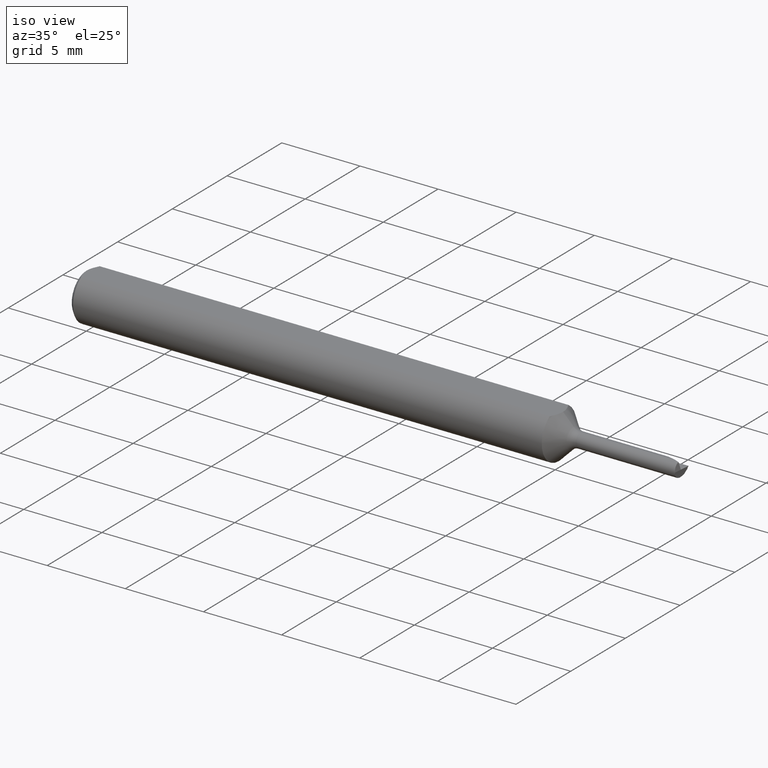
[diagram: clean part render]
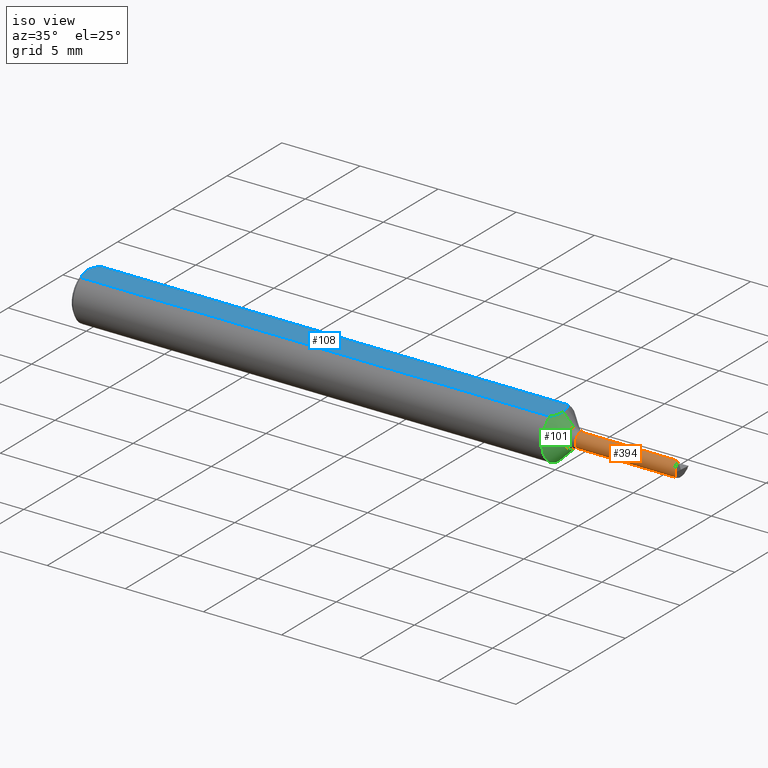
[diagram: same view with three faces highlighted in distinct colors, each labeled with its STEP entity id]
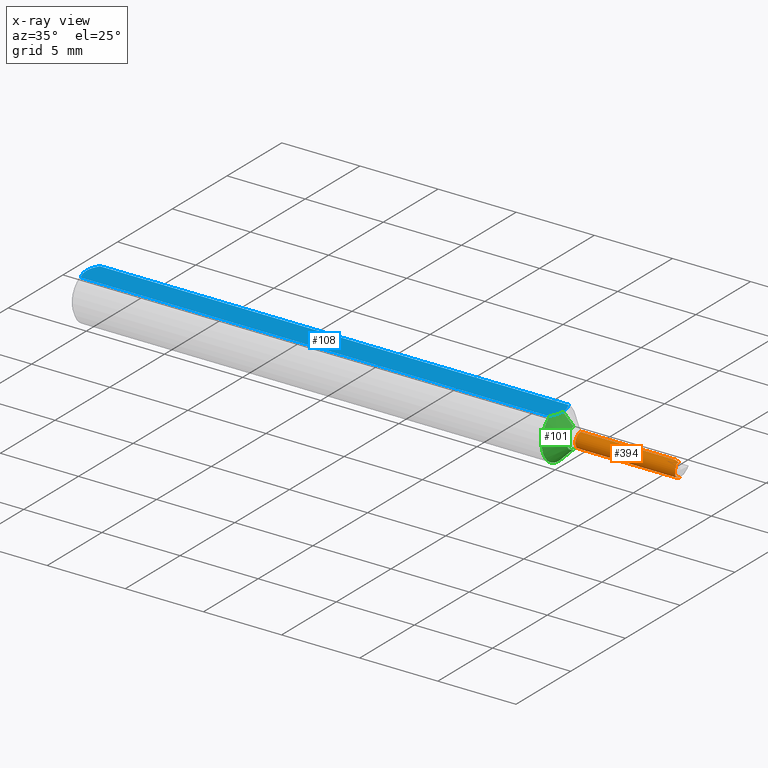
[diagram: x-ray of the same camera — body ghosted, the three highlighted faces saturated]
A machine part, iso view with three faces highlighted in distinct colors.
The next image is the same camera in x-ray (body ghosted, the three faces saturated) — at least one of them is partly hidden behind the body in this view.
Their STEP definitions:

[orange] entity #394 — the highlighted cylindrical surface (edge-blend (fillet) strip) has radius 0.4699 mm, axis along (-1, -0, -0).
#11 = VERTEX_POINT ( 'NONE', #97 ) ;
#12 = LINE ( 'NONE', #172, #50 ) ;
#27 = EDGE_CURVE ( 'NONE', #630, #31, #138, .T. ) ;
#31 = VERTEX_POINT ( 'NONE', #248 ) ;
#50 = VECTOR ( 'NONE', #102, 39.37007874015748143 ) ;
#78 = CARTESIAN_POINT ( 'NONE',  ( 1.496237987468385322, -0.01849999999999997133, 2.346737396167181165E-16 ) ) ;
#97 = CARTESIAN_POINT ( 'NONE',  ( 1.494952902551172302, -0.004097954674002863944, 0.01804042038007478907 ) ) ;
#102 = DIRECTION ( 'NONE',  ( -1.000000000000000000, -0.000000000000000000, -0.000000000000000000 ) ) ;
#105 = DIRECTION ( 'NONE',  ( -1.000000000000000000, -0.000000000000000000, -0.000000000000000000 ) ) ;
#113 = VERTEX_POINT ( 'NONE', #540 ) ;
#118 = EDGE_CURVE ( 'NONE', #630, #113, #12, .T. ) ;
#138 =( BOUNDED_CURVE ( )  B_SPLINE_CURVE ( 3, ( #197, #253, #393, #200 ),
 .UNSPECIFIED., .F., .T. ) 
 B_SPLINE_CURVE_WITH_KNOTS ( ( 4, 4 ),
 ( 5.728084607564617237, 7.298880934359527117 ),
 .UNSPECIFIED. ) 
 CURVE ( )  GEOMETRIC_REPRESENTATION_ITEM ( )  RATIONAL_B_SPLINE_CURVE ( ( 1.000000000000000000, 0.8047378541243618288, 0.8047378541243618288, 1.000000000000000000 ) ) 
 REPRESENTATION_ITEM ( '' )  );
#153 = CARTESIAN_POINT ( 'NONE',  ( 1.245355339059327493, 0.000000000000000000, 0.000000000000000000 ) ) ;
#172 = CARTESIAN_POINT ( 'NONE',  ( 0.000000000000000000, 2.265596578422602268E-18, -0.01849999999999999215 ) ) ;
#174 = EDGE_CURVE ( 'NONE', #237, #426, #565, .T. ) ;
#187 = CARTESIAN_POINT ( 'NONE',  ( 1.245355339059327493, 0.000000000000000000, 0.01849999999999998174 ) ) ;
#197 = CARTESIAN_POINT ( 'NONE',  ( 1.495246590703220857, 2.265596578422602268E-18, -0.01849999999999999215 ) ) ;
#200 = CARTESIAN_POINT ( 'NONE',  ( 1.496237987468385322, -0.01849999999999997133, 2.346737396167181165E-16 ) ) ;
#219 = CARTESIAN_POINT ( 'NONE',  ( 1.483333815684383605, 0.000000000000000000, 0.01849999999999999215 ) ) ;
#236 = CARTESIAN_POINT ( 'NONE',  ( 1.494952902551172302, -0.004097954674002863944, 0.01804042038007478907 ) ) ;
#237 = VERTEX_POINT ( 'NONE', #506 ) ;
#248 = CARTESIAN_POINT ( 'NONE',  ( 1.496237987468385322, -0.01849999999999997133, 2.346737396167181165E-16 ) ) ;
#253 = CARTESIAN_POINT ( 'NONE',  ( 1.494298471761238423, -0.01083704909609781511, -0.01850000000000000949 ) ) ;
#256 = CARTESIAN_POINT ( 'NONE',  ( 0.000000000000000000, 0.000000000000000000, 0.01849999999999999215 ) ) ;
#258 = EDGE_CURVE ( 'NONE', #113, #426, #427, .T. ) ;
#264 = CARTESIAN_POINT ( 'NONE',  ( 1.491015288325890253, -0.002751962849509065681, 0.01834616788330072426 ) ) ;
#268 = ORIENTED_EDGE ( 'NONE', *, *, #174, .T. ) ;
#279 = CYLINDRICAL_SURFACE ( 'NONE', #364, 0.01849999999999999215 ) ;
#288 = CARTESIAN_POINT ( 'NONE',  ( 1.494465960141844629, -0.01288082332125571258, 0.01604535613734156194 ) ) ;
#291 = EDGE_CURVE ( 'NONE', #11, #237, #451, .T. ) ;
#306 = ORIENTED_EDGE ( 'NONE', *, *, #27, .T. ) ;
#349 = ORIENTED_EDGE ( 'NONE', *, *, #118, .F. ) ;
#351 = CARTESIAN_POINT ( 'NONE',  ( 1.494952902551172302, -0.004097954674002863944, 0.01804042038007478907 ) ) ;
#364 = AXIS2_PLACEMENT_3D ( 'NONE', #528, #475, #371 ) ;
#371 = DIRECTION ( 'NONE',  ( 0.000000000000000000, 0.000000000000000000, 1.000000000000000000 ) ) ;
#372 = ORIENTED_EDGE ( 'NONE', *, *, #258, .F. ) ;
#382 = EDGE_CURVE ( 'NONE', #11, #31, #513, .T. ) ;
#393 = CARTESIAN_POINT ( 'NONE',  ( 1.494709121747062275, -0.01850000000000011705, -0.01083704909609763470 ) ) ;
#394 = ADVANCED_FACE ( 'NONE', ( #523 ), #279, .T. ) ;
#426 = VERTEX_POINT ( 'NONE', #187 ) ;
#427 = CIRCLE ( 'NONE', #443, 0.01849999999999998174 ) ;
#443 = AXIS2_PLACEMENT_3D ( 'NONE', #153, #105, #515 ) ;
#451 =( BOUNDED_CURVE ( )  B_SPLINE_CURVE ( 3, ( #351, #264, #458, #219 ),
 .UNSPECIFIED., .F., .F. ) 
 B_SPLINE_CURVE_WITH_KNOTS ( ( 4, 4 ),
 ( 4.766799014753298813, 4.990162771046300350 ),
 .UNSPECIFIED. ) 
 CURVE ( )  GEOMETRIC_REPRESENTATION_ITEM ( )  RATIONAL_B_SPLINE_CURVE ( ( 1.000000000000000000, 0.9958467056734143785, 0.9958467056734143785, 1.000000000000000000 ) ) 
 REPRESENTATION_ITEM ( '' )  );
#453 = DIRECTION ( 'NONE',  ( -1.000000000000000000, -0.000000000000000000, -0.000000000000000000 ) ) ;
#458 = CARTESIAN_POINT ( 'NONE',  ( 1.487126106453287244, -0.001380280959563399230, 0.01849999999999999215 ) ) ;
#466 = ORIENTED_EDGE ( 'NONE', *, *, #291, .T. ) ;
#475 = DIRECTION ( 'NONE',  ( -1.000000000000000000, -0.000000000000000000, -0.000000000000000000 ) ) ;
#506 = CARTESIAN_POINT ( 'NONE',  ( 1.483333815684383605, 0.000000000000000000, 0.01849999999999999215 ) ) ;
#513 =( BOUNDED_CURVE ( )  B_SPLINE_CURVE ( 3, ( #236, #288, #519, #78 ),
 .UNSPECIFIED., .F., .T. ) 
 B_SPLINE_CURVE_WITH_KNOTS ( ( 4, 4 ),
 ( 5.951448363857583246, 7.298880934359466721 ),
 .UNSPECIFIED. ) 
 CURVE ( )  GEOMETRIC_REPRESENTATION_ITEM ( )  RATIONAL_B_SPLINE_CURVE ( ( 1.000000000000000000, 0.8543389983611018312, 0.8543389983611018312, 1.000000000000000000 ) ) 
 REPRESENTATION_ITEM ( '' )  );
#515 = DIRECTION ( 'NONE',  ( 0.000000000000000000, 0.000000000000000000, 1.000000000000000000 ) ) ;
#519 = CARTESIAN_POINT ( 'NONE',  ( 1.494967355536287235, -0.01849999999999989847, 0.009006612182587466625 ) ) ;
#523 = FACE_OUTER_BOUND ( 'NONE', #566, .T. ) ;
#528 = CARTESIAN_POINT ( 'NONE',  ( 0.000000000000000000, 0.000000000000000000, 0.000000000000000000 ) ) ;
#530 = VECTOR ( 'NONE', #453, 39.37007874015748143 ) ;
#540 = CARTESIAN_POINT ( 'NONE',  ( 1.245355339059327493, 2.265596578422601883E-18, -0.01849999999999998174 ) ) ;
#565 = LINE ( 'NONE', #256, #530 ) ;
#566 = EDGE_LOOP ( 'NONE', ( #349, #306, #600, #466, #268, #372 ) ) ;
#600 = ORIENTED_EDGE ( 'NONE', *, *, #382, .F. ) ;
#630 = VERTEX_POINT ( 'NONE', #636 ) ;
#636 = CARTESIAN_POINT ( 'NONE',  ( 1.495246590703220857, 2.265596578422602268E-18, -0.01849999999999999215 ) ) ;

[blue] entity #108 — the highlighted planar face has unit normal (0, 0, -1).
#3 = VECTOR ( 'NONE', #415, 39.37007874015748143 ) ;
#30 = CARTESIAN_POINT ( 'NONE',  ( -1.099542139246802830E-15, 0.005954997531773979953, 0.05235000000000002152 ) ) ;
#40 = ORIENTED_EDGE ( 'NONE', *, *, #602, .F. ) ;
#53 = EDGE_CURVE ( 'NONE', #552, #462, #114, .T. ) ;
#59 = CARTESIAN_POINT ( 'NONE',  ( 1.196488788636946854, 0.02320328458619745973, 0.05235000000000002152 ) ) ;
#84 = EDGE_LOOP ( 'NONE', ( #355, #383, #220, #390, #40, #201 ) ) ;
#89 = CARTESIAN_POINT ( 'NONE',  ( 0.001063697276021357847, 0.01189177144351693735, 0.05235000000000001458 ) ) ;
#108 = ADVANCED_FACE ( 'NONE', ( #208 ), #550, .F. ) ;
#114 = B_SPLINE_CURVE_WITH_KNOTS ( 'NONE', 3,
 ( #293, #396, #146, #250, #547, #593 ),
 .UNSPECIFIED., .F., .F.,
 ( 4, 2, 4 ),
 ( 0.001820301466808207621, 0.002269751589840481119, 0.002719201712872754834 ),
 .UNSPECIFIED. ) ;
#143 = EDGE_CURVE ( 'NONE', #367, #352, #354, .T. ) ;
#146 = CARTESIAN_POINT ( 'NONE',  ( 0.001055043921644571291, -0.01186408073217194367, 0.05235000000000002152 ) ) ;
#152 = B_SPLINE_CURVE_WITH_KNOTS ( 'NONE', 3,
 ( #275, #469, #465, #89, #30, #581 ),
 .UNSPECIFIED., .F., .F.,
 ( 4, 2, 4 ),
 ( 0.0009229516234078821539, 0.001371626545108044996, 0.001820301466808207621 ),
 .UNSPECIFIED. ) ;
#160 = CARTESIAN_POINT ( 'NONE',  ( 1.201150000000000162, -1.477726050556335798E-21, 0.05235000000000001458 ) ) ;
#165 = CARTESIAN_POINT ( 'NONE',  ( 1.191150000000000153, 0.03386738844375220686, 0.05235000000000000070 ) ) ;
#171 = CARTESIAN_POINT ( 'NONE',  ( 1.191150000000000153, -0.03386738844375220686, 0.05235000000000000070 ) ) ;
#179 = CARTESIAN_POINT ( 'NONE',  ( 1.201149999999999718, -0.005924734429433293689, 0.05235000000000002152 ) ) ;
#182 = CARTESIAN_POINT ( 'NONE',  ( 1.201150000000000162, -1.477726050556335798E-21, 0.05235000000000001458 ) ) ;
#194 = DIRECTION ( 'NONE',  ( -1.000000000000000000, 0.000000000000000000, -0.000000000000000000 ) ) ;
#201 = ORIENTED_EDGE ( 'NONE', *, *, #269, .F. ) ;
#208 = FACE_OUTER_BOUND ( 'NONE', #84, .T. ) ;
#220 = ORIENTED_EDGE ( 'NONE', *, *, #53, .T. ) ;
#239 = CARTESIAN_POINT ( 'NONE',  ( 0.01000000000000840841, -0.03386738844395137393, 0.05235000000000001458 ) ) ;
#250 = CARTESIAN_POINT ( 'NONE',  ( 0.004679365186825695105, -0.02325953974091124477, 0.05235000000000000764 ) ) ;
#262 = CARTESIAN_POINT ( 'NONE',  ( 1.201150000000000162, 0.005920815533601037767, 0.05235000000000002152 ) ) ;
#267 = CARTESIAN_POINT ( 'NONE',  ( 1.201150000000000162, -1.477726050556335798E-21, 0.05235000000000001458 ) ) ;
#269 = EDGE_CURVE ( 'NONE', #352, #319, #509, .T. ) ;
#275 = CARTESIAN_POINT ( 'NONE',  ( 0.009999999999999890921, 0.03386738844375217911, 0.05235000000000001458 ) ) ;
#276 = VERTEX_POINT ( 'NONE', #511 ) ;
#283 = CARTESIAN_POINT ( 'NONE',  ( 0.000000000000000000, -0.03386738844375220686, 0.05235000000000000070 ) ) ;
#293 = CARTESIAN_POINT ( 'NONE',  ( 0.000000000000000000, 0.000000000000000000, 0.05235000000000033377 ) ) ;
#302 = CARTESIAN_POINT ( 'NONE',  ( 1.500000000000000222, 0.06235000000000000264, 0.05235000000000001458 ) ) ;
#315 = CARTESIAN_POINT ( 'NONE',  ( 1.193992034642578748, 0.02863519109676619309, 0.05235000000000002152 ) ) ;
#319 = VERTEX_POINT ( 'NONE', #267 ) ;
#332 = LINE ( 'NONE', #283, #399 ) ;
#340 = DIRECTION ( 'NONE',  ( 0.000000000000000000, 0.000000000000000000, -1.000000000000000000 ) ) ;
#352 = VERTEX_POINT ( 'NONE', #420 ) ;
#354 = LINE ( 'NONE', #557, #3 ) ;
#355 = ORIENTED_EDGE ( 'NONE', *, *, #143, .F. ) ;
#362 = EDGE_CURVE ( 'NONE', #367, #552, #152, .T. ) ;
#367 = VERTEX_POINT ( 'NONE', #573 ) ;
#374 = CARTESIAN_POINT ( 'NONE',  ( 1.200078879331740067, -0.01191647624495714534, 0.05235000000000002152 ) ) ;
#383 = ORIENTED_EDGE ( 'NONE', *, *, #362, .T. ) ;
#390 = ORIENTED_EDGE ( 'NONE', *, *, #408, .F. ) ;
#396 = CARTESIAN_POINT ( 'NONE',  ( -1.070637973615595603E-15, -0.005965286321711177862, 0.05235000000000002152 ) ) ;
#399 = VECTOR ( 'NONE', #479, 39.37007874015748143 ) ;
#408 = EDGE_CURVE ( 'NONE', #276, #462, #332, .T. ) ;
#409 = CARTESIAN_POINT ( 'NONE',  ( 1.200078615661968717, 0.01191463382135337506, 0.05235000000000001458 ) ) ;
#415 = DIRECTION ( 'NONE',  ( 1.000000000000000000, 0.000000000000000000, 0.000000000000000000 ) ) ;
#420 = CARTESIAN_POINT ( 'NONE',  ( 1.191150000000000153, 0.03386738844375220686, 0.05235000000000000070 ) ) ;
#462 = VERTEX_POINT ( 'NONE', #239 ) ;
#465 = CARTESIAN_POINT ( 'NONE',  ( 0.004671770759546769666, 0.02323517832780105236, 0.05235000000000002152 ) ) ;
#469 = CARTESIAN_POINT ( 'NONE',  ( 0.007185421074056205608, 0.02868573718286560742, 0.05235000000000002152 ) ) ;
#479 = DIRECTION ( 'NONE',  ( -1.000000000000000000, -0.000000000000000000, -0.000000000000000000 ) ) ;
#493 = B_SPLINE_CURVE_WITH_KNOTS ( 'NONE', 3,
 ( #182, #179, #374, #575, #572, #171 ),
 .UNSPECIFIED., .F., .F.,
 ( 4, 2, 4 ),
 ( 0.002916663230282865588, 0.003365861382119323536, 0.003815059533955781918 ),
 .UNSPECIFIED. ) ;
#509 = B_SPLINE_CURVE_WITH_KNOTS ( 'NONE', 3,
 ( #165, #315, #59, #409, #262, #160 ),
 .UNSPECIFIED., .F., .F.,
 ( 4, 2, 4 ),
 ( 0.002018861167849305468, 0.002467762199066085745, 0.002916663230282865588 ),
 .UNSPECIFIED. ) ;
#510 = CARTESIAN_POINT ( 'NONE',  ( 0.000000000000000000, 0.000000000000000000, 0.05235000000000033377 ) ) ;
#511 = CARTESIAN_POINT ( 'NONE',  ( 1.191150000000000153, -0.03386738844375220686, 0.05235000000000000070 ) ) ;
#547 = CARTESIAN_POINT ( 'NONE',  ( 0.007163450771416182694, -0.02864528976632487248, 0.05235000000000001458 ) ) ;
#550 = PLANE ( 'NONE',  #558 ) ;
#552 = VERTEX_POINT ( 'NONE', #510 ) ;
#557 = CARTESIAN_POINT ( 'NONE',  ( 0.000000000000000000, 0.03386738844375220686, 0.05235000000000000070 ) ) ;
#558 = AXIS2_PLACEMENT_3D ( 'NONE', #302, #340, #194 ) ;
#572 = CARTESIAN_POINT ( 'NONE',  ( 1.194001488371463138, -0.02861778674340261994, 0.05235000000000002152 ) ) ;
#573 = CARTESIAN_POINT ( 'NONE',  ( 0.009999999999999890921, 0.03386738844375217911, 0.05235000000000001458 ) ) ;
#575 = CARTESIAN_POINT ( 'NONE',  ( 1.196482645487523699, -0.02321992653401850834, 0.05235000000000001458 ) ) ;
#581 = CARTESIAN_POINT ( 'NONE',  ( 0.000000000000000000, 0.000000000000000000, 0.05235000000000033377 ) ) ;
#593 = CARTESIAN_POINT ( 'NONE',  ( 0.01000000000000840841, -0.03386738844395137393, 0.05235000000000001458 ) ) ;
#602 = EDGE_CURVE ( 'NONE', #319, #276, #493, .T. ) ;

[green] entity #101 — the highlighted conical surface has half-angle 45 deg.
#4 = AXIS2_PLACEMENT_3D ( 'NONE', #378, #527, #484 ) ;
#7 = DIRECTION ( 'NONE',  ( -1.000000000000000000, -0.000000000000000000, -0.000000000000000000 ) ) ;
#29 = CARTESIAN_POINT ( 'NONE',  ( 1.227677669529663618, 3.162323435702253921E-18, -0.02582233047033631948 ) ) ;
#55 = CARTESIAN_POINT ( 'NONE',  ( 1.227677669529663618, 0.000000000000000000, 0.000000000000000000 ) ) ;
#69 = DIRECTION ( 'NONE',  ( -1.000000000000000000, -0.000000000000000000, -0.000000000000000000 ) ) ;
#81 = VECTOR ( 'NONE', #145, 39.37007874015748143 ) ;
#86 = EDGE_CURVE ( 'NONE', #549, #319, #590, .T. ) ;
#101 = ADVANCED_FACE ( 'NONE', ( #597 ), #164, .T. ) ;
#116 = DIRECTION ( 'NONE',  ( -0.7071067811865451302, 8.659560562354962440E-17, -0.7071067811865499042 ) ) ;
#127 = CARTESIAN_POINT ( 'NONE',  ( 1.227677669529663618, 0.000000000000000000, 0.02582233047033631948 ) ) ;
#139 = ORIENTED_EDGE ( 'NONE', *, *, #602, .T. ) ;
#145 = DIRECTION ( 'NONE',  ( -0.7071067811865451302, 0.000000000000000000, 0.7071067811865499042 ) ) ;
#164 = CONICAL_SURFACE ( 'NONE', #625, 0.02582233047033630560, 0.7853981633974517207 ) ;
#166 = CIRCLE ( 'NONE', #4, 0.06235000000000000264 ) ;
#171 = CARTESIAN_POINT ( 'NONE',  ( 1.191150000000000153, -0.03386738844375220686, 0.05235000000000000070 ) ) ;
#179 = CARTESIAN_POINT ( 'NONE',  ( 1.201149999999999718, -0.005924734429433293689, 0.05235000000000002152 ) ) ;
#182 = CARTESIAN_POINT ( 'NONE',  ( 1.201150000000000162, -1.477726050556335798E-21, 0.05235000000000001458 ) ) ;
#204 = EDGE_CURVE ( 'NONE', #476, #634, #310, .T. ) ;
#231 = CARTESIAN_POINT ( 'NONE',  ( 1.227677669529663618, 0.000000000000000000, 0.000000000000000000 ) ) ;
#249 = AXIS2_PLACEMENT_3D ( 'NONE', #231, #69, #320 ) ;
#263 = ORIENTED_EDGE ( 'NONE', *, *, #204, .F. ) ;
#267 = CARTESIAN_POINT ( 'NONE',  ( 1.201150000000000162, -1.477726050556335798E-21, 0.05235000000000001458 ) ) ;
#276 = VERTEX_POINT ( 'NONE', #511 ) ;
#310 = LINE ( 'NONE', #603, #504 ) ;
#316 = ORIENTED_EDGE ( 'NONE', *, *, #489, .T. ) ;
#319 = VERTEX_POINT ( 'NONE', #267 ) ;
#320 = DIRECTION ( 'NONE',  ( 0.000000000000000000, 0.000000000000000000, 1.000000000000000000 ) ) ;
#353 = CIRCLE ( 'NONE', #249, 0.02582233047033630560 ) ;
#374 = CARTESIAN_POINT ( 'NONE',  ( 1.200078879331740067, -0.01191647624495714534, 0.05235000000000002152 ) ) ;
#378 = CARTESIAN_POINT ( 'NONE',  ( 1.191150000000000153, 0.000000000000000000, 0.000000000000000000 ) ) ;
#386 = CARTESIAN_POINT ( 'NONE',  ( 1.191150000000000153, 7.635672792683746671E-18, -0.06235000000000000264 ) ) ;
#437 = DIRECTION ( 'NONE',  ( 0.000000000000000000, 0.000000000000000000, 1.000000000000000000 ) ) ;
#454 = ORIENTED_EDGE ( 'NONE', *, *, #86, .T. ) ;
#476 = VERTEX_POINT ( 'NONE', #29 ) ;
#484 = DIRECTION ( 'NONE',  ( 0.000000000000000000, 0.000000000000000000, 1.000000000000000000 ) ) ;
#489 = EDGE_CURVE ( 'NONE', #476, #549, #353, .T. ) ;
#493 = B_SPLINE_CURVE_WITH_KNOTS ( 'NONE', 3,
 ( #182, #179, #374, #575, #572, #171 ),
 .UNSPECIFIED., .F., .F.,
 ( 4, 2, 4 ),
 ( 0.002916663230282865588, 0.003365861382119323536, 0.003815059533955781918 ),
 .UNSPECIFIED. ) ;
#504 = VECTOR ( 'NONE', #116, 39.37007874015748143 ) ;
#511 = CARTESIAN_POINT ( 'NONE',  ( 1.191150000000000153, -0.03386738844375220686, 0.05235000000000000070 ) ) ;
#527 = DIRECTION ( 'NONE',  ( -1.000000000000000000, -0.000000000000000000, -0.000000000000000000 ) ) ;
#544 = CARTESIAN_POINT ( 'NONE',  ( 1.227677669529663618, 0.000000000000000000, 0.02582233047033630560 ) ) ;
#545 = ORIENTED_EDGE ( 'NONE', *, *, #626, .F. ) ;
#549 = VERTEX_POINT ( 'NONE', #127 ) ;
#572 = CARTESIAN_POINT ( 'NONE',  ( 1.194001488371463138, -0.02861778674340261994, 0.05235000000000002152 ) ) ;
#575 = CARTESIAN_POINT ( 'NONE',  ( 1.196482645487523699, -0.02321992653401850834, 0.05235000000000001458 ) ) ;
#590 = LINE ( 'NONE', #544, #81 ) ;
#597 = FACE_OUTER_BOUND ( 'NONE', #613, .T. ) ;
#602 = EDGE_CURVE ( 'NONE', #319, #276, #493, .T. ) ;
#603 = CARTESIAN_POINT ( 'NONE',  ( 1.227677669529663618, 3.162323435702252765E-18, -0.02582233047033630560 ) ) ;
#613 = EDGE_LOOP ( 'NONE', ( #263, #316, #454, #139, #545 ) ) ;
#625 = AXIS2_PLACEMENT_3D ( 'NONE', #55, #7, #437 ) ;
#626 = EDGE_CURVE ( 'NONE', #634, #276, #166, .T. ) ;
#634 = VERTEX_POINT ( 'NONE', #386 ) ;